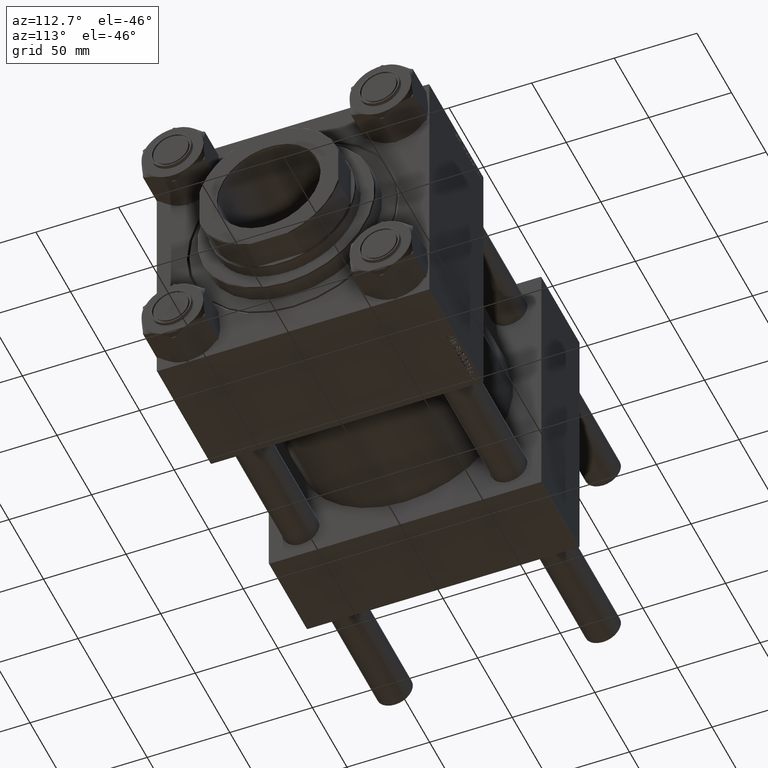
[diagram: clean part render]
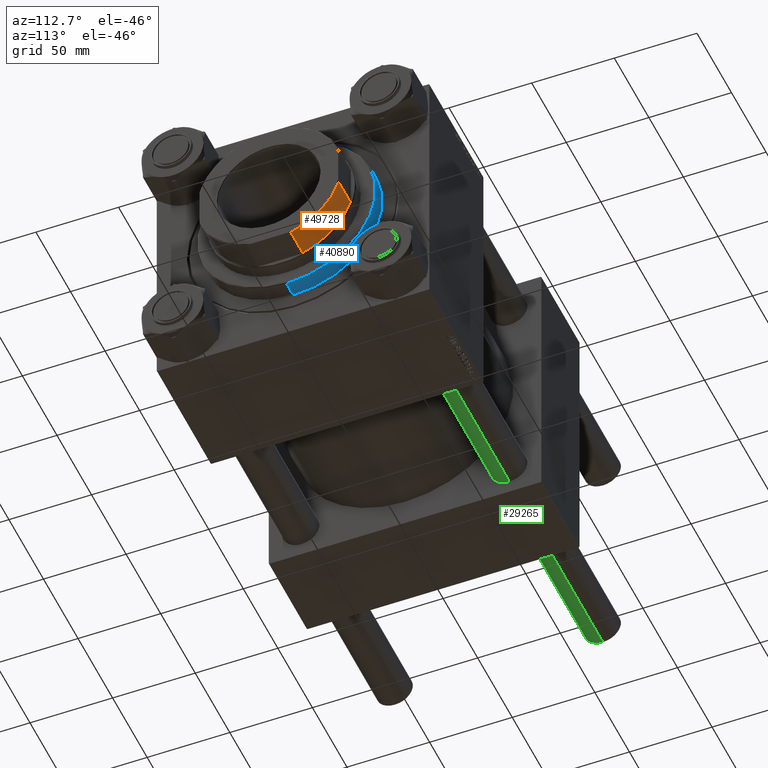
[diagram: same view with three faces highlighted in distinct colors, each labeled with its STEP entity id]
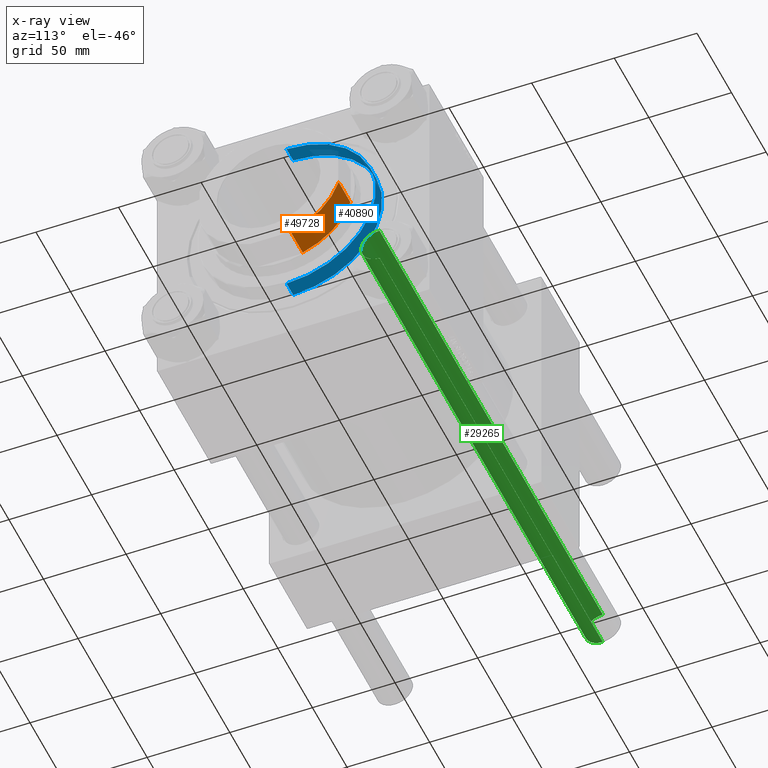
[diagram: x-ray of the same camera — body ghosted, the three highlighted faces saturated]
A machine part, auxiliary view with three faces highlighted in distinct colors.
The next image is the same camera in x-ray (body ghosted, the three faces saturated) — at least one of them is partly hidden behind the body in this view.
Their STEP definitions:

[orange] entity #49728 — the highlighted cylindrical surface (partial cylindrical patch) has radius 44 mm, axis along (1, 0, -0).
#333 = AXIS2_PLACEMENT_3D ( 'NONE', #24939, #9159, #6109 ) ;
#1820 = VERTEX_POINT ( 'NONE', #43272 ) ;
#2068 = ORIENTED_EDGE ( 'NONE', *, *, #44895, .F. ) ;
#2511 = CARTESIAN_POINT ( 'NONE',  ( -13.11487704860396164, 42.00000000000000711, -0.001000000000001000089 ) ) ;
#4080 = ORIENTED_EDGE ( 'NONE', *, *, #27254, .T. ) ;
#4714 = CARTESIAN_POINT ( 'NONE',  ( -41.99999999999999289, 13.11487704860400605, -0.001000000000001000089 ) ) ;
#5607 = FACE_OUTER_BOUND ( 'NONE', #48323, .T. ) ;
#5840 = LINE ( 'NONE', #2511, #49870 ) ;
#6109 = DIRECTION ( 'NONE',  ( 1.000000000000000000, 0.000000000000000000, 0.000000000000000000 ) ) ;
#6328 = AXIS2_PLACEMENT_3D ( 'NONE', #27542, #15590, #38237 ) ;
#6562 = CARTESIAN_POINT ( 'NONE',  ( -41.99999999999999289, 13.11487704860400427, 179.4999999999999147 ) ) ;
#7907 = CARTESIAN_POINT ( 'NONE',  ( -41.99999999999999289, 13.11487704860400605, 196.4999999999997158 ) ) ;
#9159 = DIRECTION ( 'NONE',  ( -0.000000000000000000, -0.000000000000000000, 1.000000000000000000 ) ) ;
#11328 = VERTEX_POINT ( 'NONE', #16201 ) ;
#15590 = DIRECTION ( 'NONE',  ( -0.000000000000000000, -0.000000000000000000, -1.000000000000000000 ) ) ;
#16201 = CARTESIAN_POINT ( 'NONE',  ( -13.11487704860395809, 42.00000000000000711, 179.4999999999999147 ) ) ;
#16928 = VECTOR ( 'NONE', #20246, 1000.000000000000000 ) ;
#18635 = AXIS2_PLACEMENT_3D ( 'NONE', #29589, #45581, #45837 ) ;
#20238 = EDGE_CURVE ( 'NONE', #49601, #1820, #50204, .T. ) ;
#20246 = DIRECTION ( 'NONE',  ( -0.000000000000000000, -0.000000000000000000, 1.000000000000000000 ) ) ;
#24939 = CARTESIAN_POINT ( 'NONE',  ( 0.000000000000000000, 0.000000000000000000, -0.001000000000001000089 ) ) ;
#25128 = EDGE_CURVE ( 'NONE', #31697, #49601, #27872, .T. ) ;
#27254 = EDGE_CURVE ( 'NONE', #11328, #31697, #50272, .T. ) ;
#27542 = CARTESIAN_POINT ( 'NONE',  ( 0.000000000000000000, 0.000000000000000000, 196.4999999999997442 ) ) ;
#27872 = LINE ( 'NONE', #4714, #16928 ) ;
#29260 = CYLINDRICAL_SURFACE ( 'NONE', #333, 44.00000000000000000 ) ;
#29589 = CARTESIAN_POINT ( 'NONE',  ( 0.000000000000000000, 0.000000000000000000, 179.4999999999999147 ) ) ;
#31697 = VERTEX_POINT ( 'NONE', #6562 ) ;
#32541 = DIRECTION ( 'NONE',  ( -0.000000000000000000, -0.000000000000000000, 1.000000000000000000 ) ) ;
#33679 = ORIENTED_EDGE ( 'NONE', *, *, #25128, .T. ) ;
#38237 = DIRECTION ( 'NONE',  ( 1.000000000000000000, 8.881784197001252323E-16, 0.000000000000000000 ) ) ;
#41466 = ORIENTED_EDGE ( 'NONE', *, *, #20238, .T. ) ;
#43272 = CARTESIAN_POINT ( 'NONE',  ( -13.11487704860396164, 42.00000000000000711, 196.4999999999997158 ) ) ;
#44895 = EDGE_CURVE ( 'NONE', #11328, #1820, #5840, .T. ) ;
#45581 = DIRECTION ( 'NONE',  ( -0.000000000000000000, -0.000000000000000000, 1.000000000000000000 ) ) ;
#45837 = DIRECTION ( 'NONE',  ( -1.000000000000000000, -1.776356839400250465E-15, 0.000000000000000000 ) ) ;
#48323 = EDGE_LOOP ( 'NONE', ( #33679, #41466, #2068, #4080 ) ) ;
#49601 = VERTEX_POINT ( 'NONE', #7907 ) ;
#49728 = ADVANCED_FACE ( 'NONE', ( #5607 ), #29260, .T. ) ;
#49870 = VECTOR ( 'NONE', #32541, 1000.000000000000000 ) ;
#50204 = CIRCLE ( 'NONE', #6328, 44.00000000000000000 ) ;
#50272 = CIRCLE ( 'NONE', #18635, 44.00000000000000000 ) ;

[blue] entity #40890 — the highlighted cylindrical surface (partial cylindrical patch) has radius 54 mm, axis along (-1, -0, 0).
#91 = CIRCLE ( 'NONE', #2532, 54.00000000000000000 ) ;
#2474 = CYLINDRICAL_SURFACE ( 'NONE', #40024, 54.00000000000000000 ) ;
#2532 = AXIS2_PLACEMENT_3D ( 'NONE', #29228, #9395, #6082 ) ;
#6082 = DIRECTION ( 'NONE',  ( 1.000000000000000000, 0.000000000000000000, 0.000000000000000000 ) ) ;
#9395 = DIRECTION ( 'NONE',  ( 0.000000000000000000, 0.000000000000000000, -1.000000000000000000 ) ) ;
#9726 = CARTESIAN_POINT ( 'NONE',  ( -54.00000000000000000, 0.000000000000000000, 28.69999999999999929 ) ) ;
#10633 = DIRECTION ( 'NONE',  ( -0.000000000000000000, -0.000000000000000000, -1.000000000000000000 ) ) ;
#13847 = CARTESIAN_POINT ( 'NONE',  ( 54.00000000000000000, 6.613092715395707467E-15, 28.69999999999999929 ) ) ;
#15332 = CARTESIAN_POINT ( 'NONE',  ( -54.00000000000000000, 0.000000000000000000, 38.19999999999994600 ) ) ;
#16182 = VECTOR ( 'NONE', #10633, 1000.000000000000000 ) ;
#18764 = CARTESIAN_POINT ( 'NONE',  ( -54.00000000000000000, 0.000000000000000000, 38.69999999999999574 ) ) ;
#19017 = VERTEX_POINT ( 'NONE', #43905 ) ;
#20097 = CARTESIAN_POINT ( 'NONE',  ( 0.000000000000000000, 0.000000000000000000, 28.69999999999999929 ) ) ;
#21313 = DIRECTION ( 'NONE',  ( -0.000000000000000000, -0.000000000000000000, -1.000000000000000000 ) ) ;
#23654 = ORIENTED_EDGE ( 'NONE', *, *, #43421, .T. ) ;
#25365 = CARTESIAN_POINT ( 'NONE',  ( 0.000000000000000000, 0.000000000000000000, 38.69999999999999574 ) ) ;
#25617 = DIRECTION ( 'NONE',  ( -1.000000000000000000, 0.000000000000000000, 0.000000000000000000 ) ) ;
#29228 = CARTESIAN_POINT ( 'NONE',  ( 0.000000000000000000, 0.000000000000000000, 38.19999999999994600 ) ) ;
#29486 = LINE ( 'NONE', #48039, #40934 ) ;
#29765 = EDGE_CURVE ( 'NONE', #37613, #39359, #44958, .T. ) ;
#29805 = ORIENTED_EDGE ( 'NONE', *, *, #44914, .T. ) ;
#33752 = FACE_OUTER_BOUND ( 'NONE', #49793, .T. ) ;
#35362 = DIRECTION ( 'NONE',  ( 1.000000000000000000, 0.000000000000000000, 0.000000000000000000 ) ) ;
#36033 = AXIS2_PLACEMENT_3D ( 'NONE', #20097, #39662, #35362 ) ;
#37014 = EDGE_CURVE ( 'NONE', #37613, #19017, #91, .T. ) ;
#37613 = VERTEX_POINT ( 'NONE', #15332 ) ;
#38504 = ORIENTED_EDGE ( 'NONE', *, *, #37014, .T. ) ;
#39229 = ORIENTED_EDGE ( 'NONE', *, *, #29765, .F. ) ;
#39359 = VERTEX_POINT ( 'NONE', #9726 ) ;
#39662 = DIRECTION ( 'NONE',  ( 0.000000000000000000, 0.000000000000000000, 1.000000000000000000 ) ) ;
#40024 = AXIS2_PLACEMENT_3D ( 'NONE', #25365, #21313, #25617 ) ;
#40096 = CIRCLE ( 'NONE', #36033, 54.00000000000000000 ) ;
#40890 = ADVANCED_FACE ( 'NONE', ( #33752 ), #2474, .T. ) ;
#40934 = VECTOR ( 'NONE', #44230, 1000.000000000000000 ) ;
#43421 = EDGE_CURVE ( 'NONE', #44092, #39359, #40096, .T. ) ;
#43905 = CARTESIAN_POINT ( 'NONE',  ( 54.00000000000000000, 6.613092715395707467E-15, 38.19999999999994600 ) ) ;
#44092 = VERTEX_POINT ( 'NONE', #13847 ) ;
#44230 = DIRECTION ( 'NONE',  ( -0.000000000000000000, -0.000000000000000000, -1.000000000000000000 ) ) ;
#44914 = EDGE_CURVE ( 'NONE', #19017, #44092, #29486, .T. ) ;
#44958 = LINE ( 'NONE', #18764, #16182 ) ;
#48039 = CARTESIAN_POINT ( 'NONE',  ( 54.00000000000000000, 6.613092715395707467E-15, 38.69999999999999574 ) ) ;
#49793 = EDGE_LOOP ( 'NONE', ( #38504, #29805, #23654, #39229 ) ) ;

[green] entity #29265 — the highlighted cylindrical surface (edge-blend (fillet) strip) has radius 11 mm, axis along (1, 0, -0).
#603 = CARTESIAN_POINT ( 'NONE',  ( 0.000000000000000000, 0.000000000000000000, 324.0000000000000000 ) ) ;
#724 = ORIENTED_EDGE ( 'NONE', *, *, #36073, .F. ) ;
#856 = DIRECTION ( 'NONE',  ( -1.000000000000000000, 0.000000000000000000, 0.000000000000000000 ) ) ;
#1274 = VERTEX_POINT ( 'NONE', #23575 ) ;
#1960 = DIRECTION ( 'NONE',  ( -0.000000000000000000, -0.000000000000000000, -1.000000000000000000 ) ) ;
#2645 = CARTESIAN_POINT ( 'NONE',  ( 11.00000000000000000, 1.347111479062088405E-15, 0.5000000000000559552 ) ) ;
#3422 = CARTESIAN_POINT ( 'NONE',  ( 0.000000000000000000, 0.000000000000000000, 0.5000000000000559552 ) ) ;
#4021 = AXIS2_PLACEMENT_3D ( 'NONE', #3422, #12061, #27333 ) ;
#9570 = CARTESIAN_POINT ( 'NONE',  ( 11.00000000000000000, 1.347111479062088405E-15, 323.5000000000000000 ) ) ;
#10458 = CARTESIAN_POINT ( 'NONE',  ( -11.00000000000000000, 0.000000000000000000, 0.5000000000000559552 ) ) ;
#12061 = DIRECTION ( 'NONE',  ( -0.000000000000000000, -0.000000000000000000, 1.000000000000000000 ) ) ;
#13176 = ORIENTED_EDGE ( 'NONE', *, *, #30077, .T. ) ;
#13537 = VERTEX_POINT ( 'NONE', #2645 ) ;
#13764 = CIRCLE ( 'NONE', #4021, 11.00000000000000000 ) ;
#19519 = VECTOR ( 'NONE', #49843, 1000.000000000000000 ) ;
#20301 = AXIS2_PLACEMENT_3D ( 'NONE', #26329, #48956, #37270 ) ;
#22145 = CARTESIAN_POINT ( 'NONE',  ( 11.00000000000000000, 1.347111479062088405E-15, 324.0000000000000000 ) ) ;
#23575 = CARTESIAN_POINT ( 'NONE',  ( -11.00000000000000000, 0.000000000000000000, 323.5000000000000000 ) ) ;
#23757 = DIRECTION ( 'NONE',  ( -0.000000000000000000, -0.000000000000000000, -1.000000000000000000 ) ) ;
#26329 = CARTESIAN_POINT ( 'NONE',  ( 0.000000000000000000, 0.000000000000000000, 323.5000000000000000 ) ) ;
#26685 = ORIENTED_EDGE ( 'NONE', *, *, #29192, .T. ) ;
#27333 = DIRECTION ( 'NONE',  ( 1.000000000000000000, 0.000000000000000000, 0.000000000000000000 ) ) ;
#29192 = EDGE_CURVE ( 'NONE', #44747, #13537, #13764, .T. ) ;
#29265 = ADVANCED_FACE ( 'NONE', ( #39520 ), #43078, .T. ) ;
#30040 = VERTEX_POINT ( 'NONE', #9570 ) ;
#30077 = EDGE_CURVE ( 'NONE', #30040, #1274, #33299, .T. ) ;
#33299 = CIRCLE ( 'NONE', #20301, 11.00000000000000000 ) ;
#35173 = EDGE_CURVE ( 'NONE', #1274, #44747, #48497, .T. ) ;
#36073 = EDGE_CURVE ( 'NONE', #30040, #13537, #38147, .T. ) ;
#36553 = VECTOR ( 'NONE', #1960, 1000.000000000000000 ) ;
#36808 = CARTESIAN_POINT ( 'NONE',  ( -11.00000000000000000, 0.000000000000000000, 324.0000000000000000 ) ) ;
#37270 = DIRECTION ( 'NONE',  ( 1.000000000000000000, 0.000000000000000000, 0.000000000000000000 ) ) ;
#38147 = LINE ( 'NONE', #22145, #19519 ) ;
#39520 = FACE_OUTER_BOUND ( 'NONE', #40610, .T. ) ;
#40610 = EDGE_LOOP ( 'NONE', ( #724, #13176, #45221, #26685 ) ) ;
#43078 = CYLINDRICAL_SURFACE ( 'NONE', #46245, 11.00000000000000000 ) ;
#44747 = VERTEX_POINT ( 'NONE', #10458 ) ;
#45221 = ORIENTED_EDGE ( 'NONE', *, *, #35173, .T. ) ;
#46245 = AXIS2_PLACEMENT_3D ( 'NONE', #603, #23757, #856 ) ;
#48497 = LINE ( 'NONE', #36808, #36553 ) ;
#48956 = DIRECTION ( 'NONE',  ( 0.000000000000000000, 0.000000000000000000, -1.000000000000000000 ) ) ;
#49843 = DIRECTION ( 'NONE',  ( -0.000000000000000000, -0.000000000000000000, -1.000000000000000000 ) ) ;